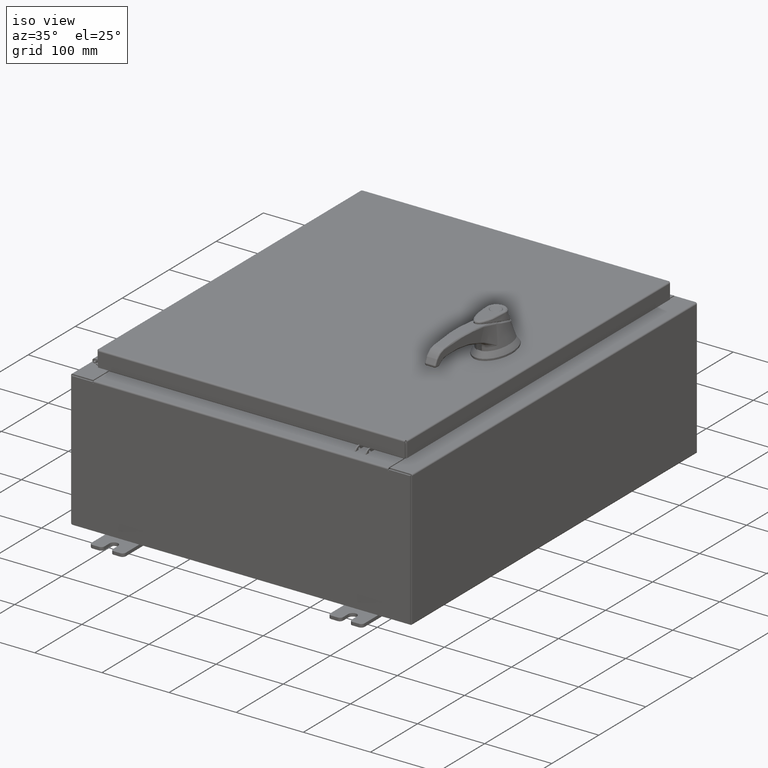
[diagram: clean part render]
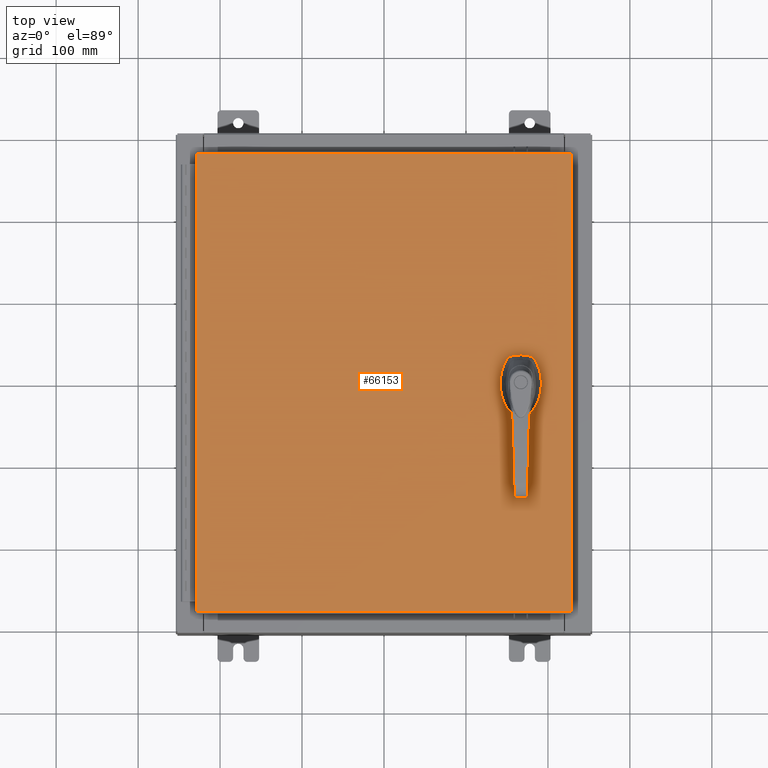
[diagram: tour spotlight — one face highlighted and labeled with its STEP entity id]
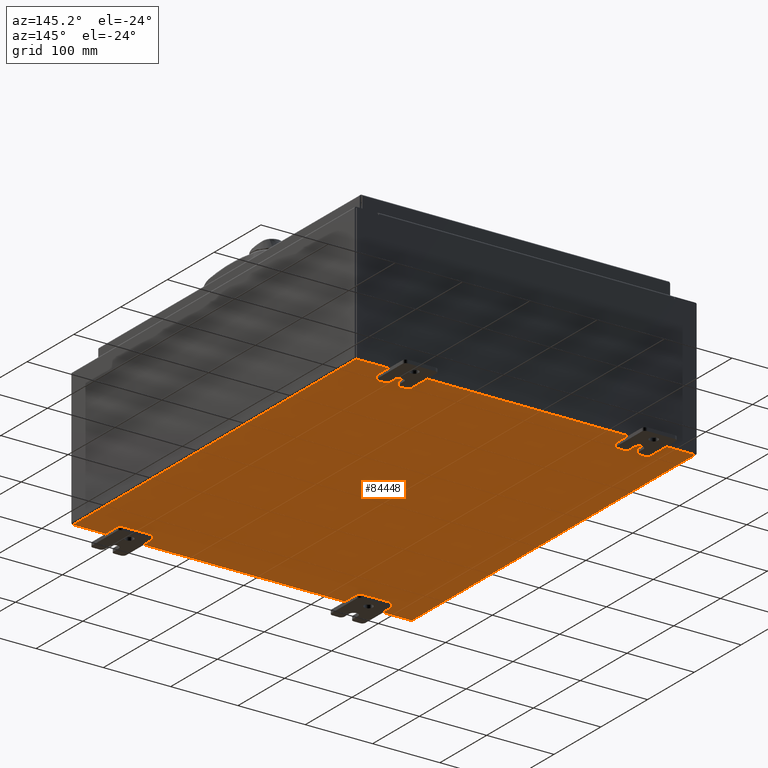
[diagram: tour spotlight — one face highlighted and labeled with its STEP entity id]
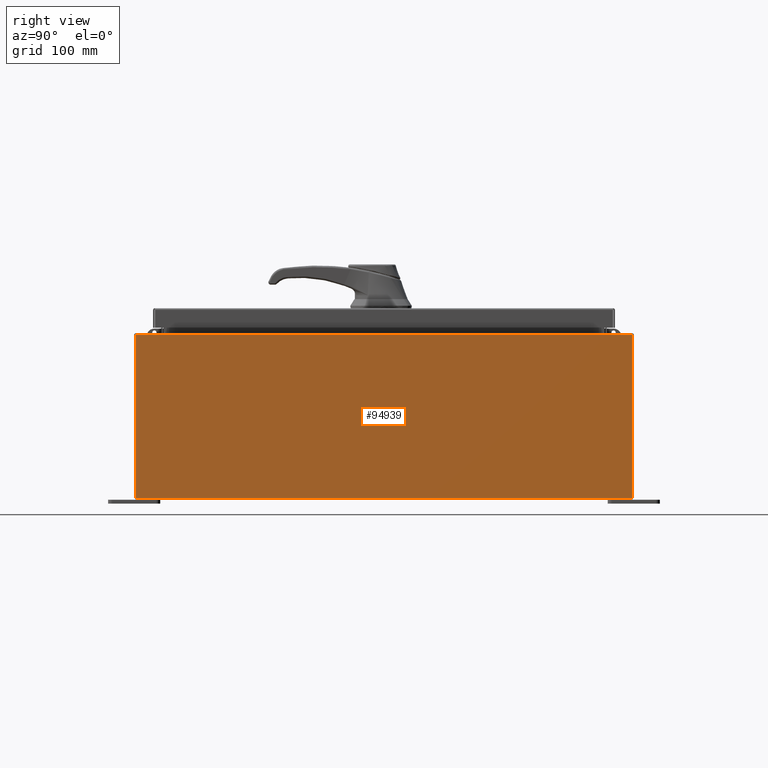
[diagram: tour spotlight — one face highlighted and labeled with its STEP entity id]
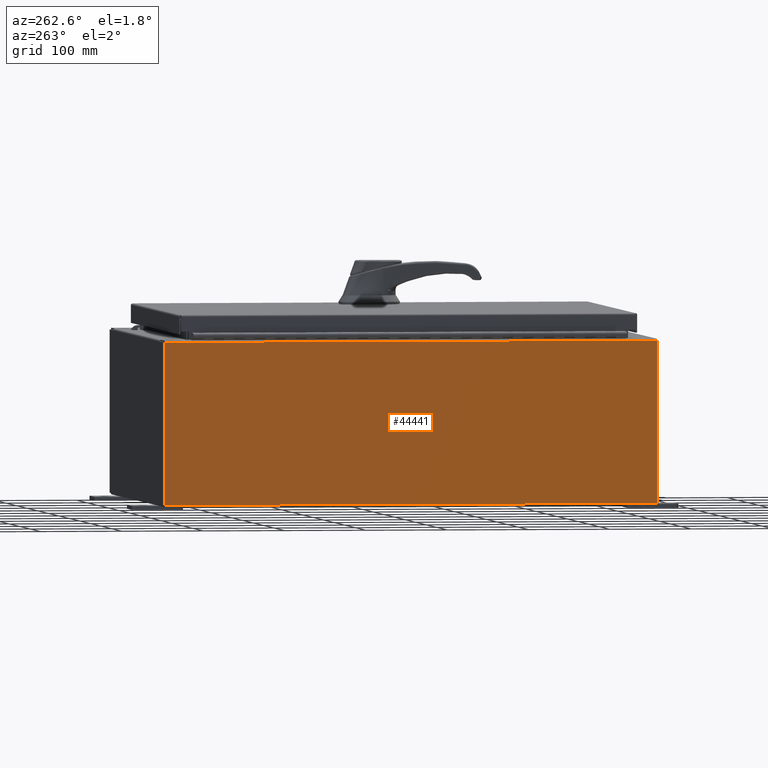
[diagram: tour spotlight — one face highlighted and labeled with its STEP entity id]
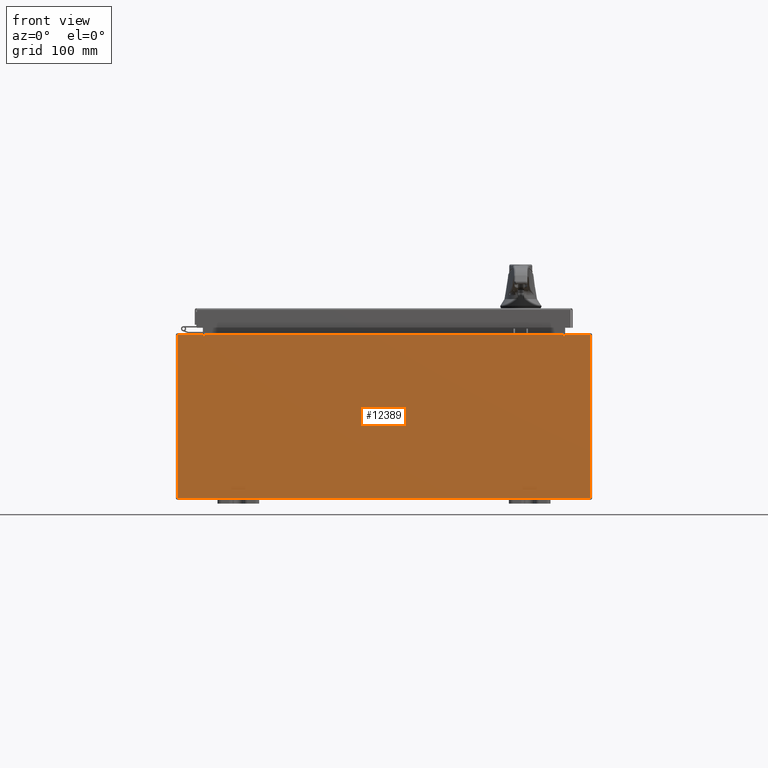
[diagram: tour spotlight — one face highlighted and labeled with its STEP entity id]
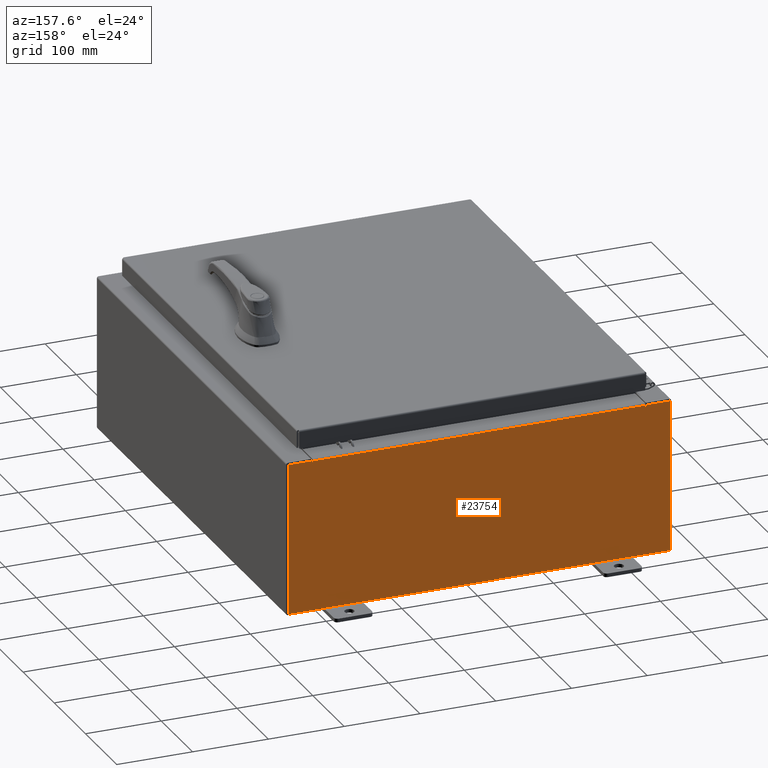
[diagram: tour spotlight — one face highlighted and labeled with its STEP entity id]
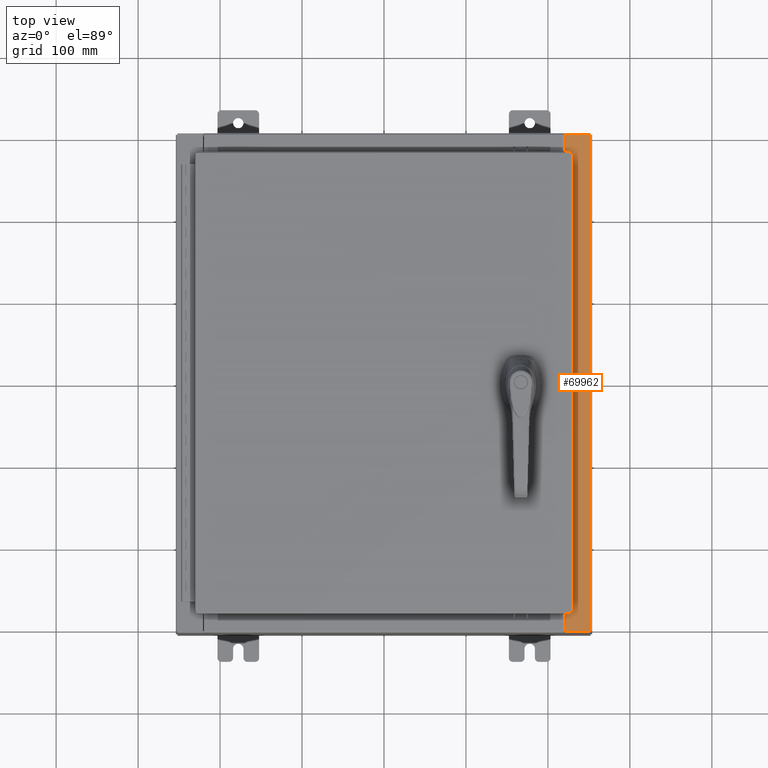
[diagram: tour spotlight — one face highlighted and labeled with its STEP entity id]
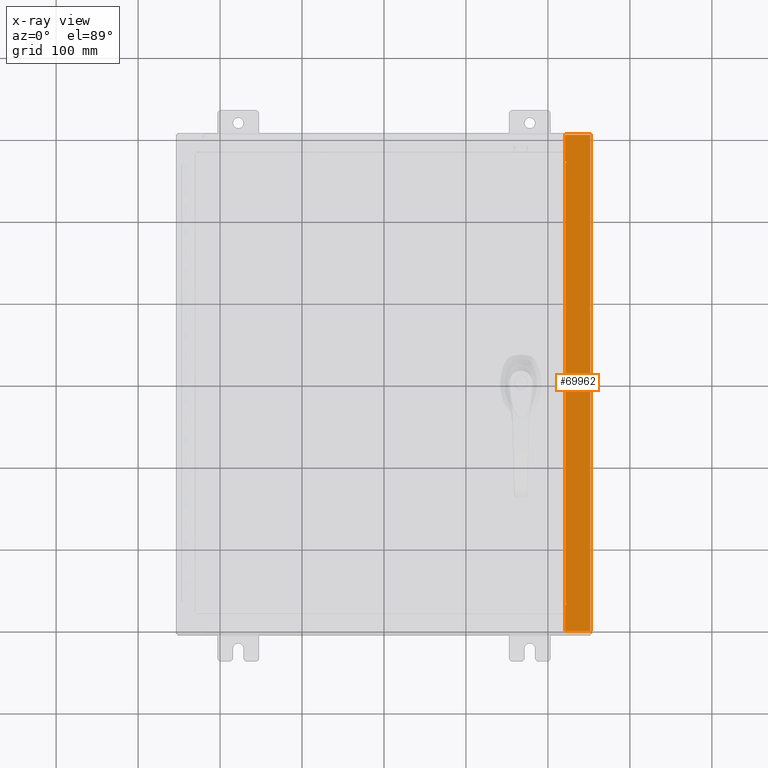
[diagram: x-ray of the same camera — body ghosted, this tour face saturated]
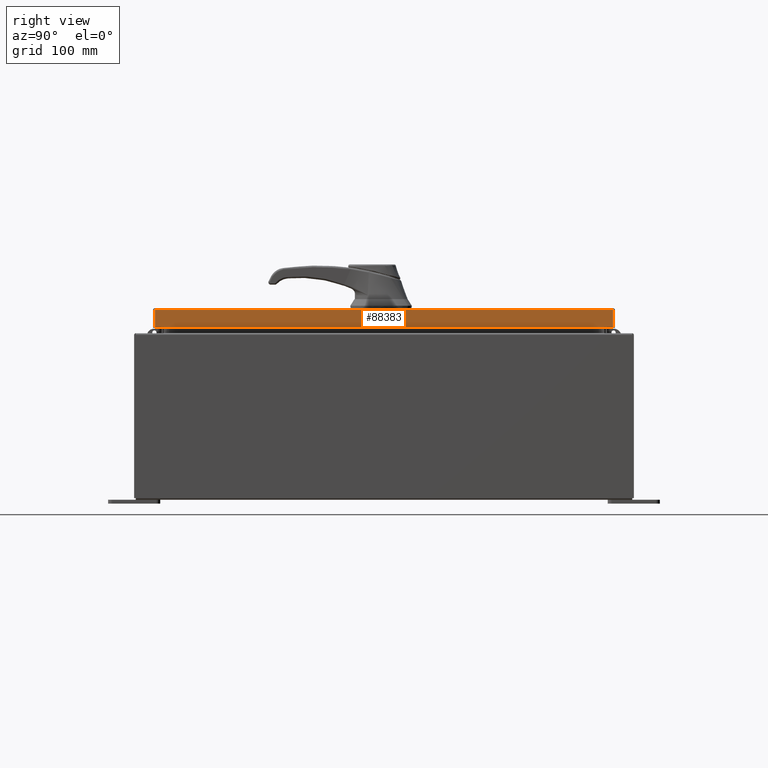
[diagram: tour spotlight — one face highlighted and labeled with its STEP entity id]
A machine part: a face-by-face anatomy tour. The part has 2498 B-rep faces; the first image is the clean iso view, then the 8 largest visible faces are spotlighted one at a time (largest first), each with its STEP entity span.

Face 1 — top view, entity #66153. In plain terms, the highlighted planar face has unit normal (0, 0, -1).
Definition (entity closure, byte-faithful):
#167 = DIRECTION ( 'NONE',  ( -1.000000000000000000, 0.0000000000000000000, -0.0000000000000000000 ) ) ;
#245 = DIRECTION ( 'NONE',  ( 0.0000000000000000000, -1.000000000000000000, 0.0000000000000000000 ) ) ;
#2099 = CARTESIAN_POINT ( 'NONE',  ( 8.990299999999997700, -11.00630000000000000, -2.219626494852214000E-016 ) ) ;
#2722 = DIRECTION ( 'NONE',  ( -0.0000000000000000000, 0.0000000000000000000, 1.000000000000000000 ) ) ;
#2962 = DIRECTION ( 'NONE',  ( 1.000000000000000000, 0.0000000000000000000, 0.0000000000000000000 ) ) ;
#5099 = EDGE_CURVE ( 'NONE', #64129, #7087, #112016, .T. ) ;
#5984 = LINE ( 'NONE', #52880, #96385 ) ;
#6948 = CARTESIAN_POINT ( 'NONE',  ( 6.778227370756308500, -0.4029999999999252000, 0.0000000000000000000 ) ) ;
#7087 = VERTEX_POINT ( 'NONE', #36078 ) ;
#7640 = DIRECTION ( 'NONE',  ( 1.000000000000000000, 0.0000000000000000000, 0.0000000000000000000 ) ) ;
#10518 = EDGE_CURVE ( 'NONE', #67933, #87426, #101704, .T. ) ;
#11762 = DIRECTION ( 'NONE',  ( -0.0000000000000000000, 0.0000000000000000000, 1.000000000000000000 ) ) ;
#12220 = ORIENTED_EDGE ( 'NONE', *, *, #45219, .T. ) ;
#12664 = EDGE_CURVE ( 'NONE', #7087, #64129, #49837, .T. ) ;
#12954 = CIRCLE ( 'NONE', #78759, 0.4499999999999156900 ) ;
#12976 = CARTESIAN_POINT ( 'NONE',  ( 6.577999999999998500, 0.0000000000000000000, 0.0000000000000000000 ) ) ;
#15866 = CIRCLE ( 'NONE', #38872, 0.4499999999999156900 ) ;
#16006 = AXIS2_PLACEMENT_3D ( 'NONE', #105162, #52801, #167 ) ;
#16655 = ORIENTED_EDGE ( 'NONE', *, *, #50394, .F. ) ;
#18141 = CARTESIAN_POINT ( 'NONE',  ( 8.990299999999999500, 11.00630000000000000, -2.048885995248197400E-016 ) ) ;
#19545 = CARTESIAN_POINT ( 'NONE',  ( -8.990299999999999500, 11.00630000000000100, -2.048885995248197400E-016 ) ) ;
#20146 = ORIENTED_EDGE ( 'NONE', *, *, #22339, .F. ) ;
#20782 = CARTESIAN_POINT ( 'NONE',  ( 6.175000000000072700, 0.0000000000000000000, 0.0000000000000000000 ) ) ;
#21818 = DIRECTION ( 'NONE',  ( 1.000000000000000000, 0.0000000000000000000, 0.0000000000000000000 ) ) ;
#22339 = EDGE_CURVE ( 'NONE', #87426, #75822, #102166, .T. ) ;
#22417 = FACE_BOUND ( 'NONE', #103806, .T. ) ;
#23910 = EDGE_LOOP ( 'NONE', ( #107874, #106300, #12220, #112803 ) ) ;
#24772 = DIRECTION ( 'NONE',  ( -1.000000000000000000, 0.0000000000000000000, 0.0000000000000000000 ) ) ;
#24813 = VECTOR ( 'NONE', #41017, 39.37007874015748100 ) ;
#24957 = CARTESIAN_POINT ( 'NONE',  ( -8.990300000000001300, -11.00630000000000100, 8.878505979408856000E-016 ) ) ;
#28572 = CARTESIAN_POINT ( 'NONE',  ( 6.577999999999998500, -1.338000000000000100, 0.0000000000000000000 ) ) ;
#29727 = CARTESIAN_POINT ( 'NONE',  ( 6.778227370756308500, 0.4029999999999252000, 0.0000000000000000000 ) ) ;
#30517 = VERTEX_POINT ( 'NONE', #34741 ) ;
#32212 = CARTESIAN_POINT ( 'NONE',  ( 6.980999999999924400, 0.0000000000000000000, 0.0000000000000000000 ) ) ;
#32299 = VERTEX_POINT ( 'NONE', #19545 ) ;
#34086 = ORIENTED_EDGE ( 'NONE', *, *, #69114, .T. ) ;
#34741 = CARTESIAN_POINT ( 'NONE',  ( 6.980999999999924400, 0.2002273707563080300, 0.0000000000000000000 ) ) ;
#34956 = CARTESIAN_POINT ( 'NONE',  ( 6.175000000000072700, -0.2002273707563079800, 0.0000000000000000000 ) ) ;
#35582 = CARTESIAN_POINT ( 'NONE',  ( -8.990300000000001300, -11.00630000000000100, 8.878505979408856000E-016 ) ) ;
#36078 = CARTESIAN_POINT ( 'NONE',  ( 6.406499999999998500, -1.338000000000000100, 0.0000000000000000000 ) ) ;
#36494 = VECTOR ( 'NONE', #2962, 39.37007874015748100 ) ;
#37043 = AXIS2_PLACEMENT_3D ( 'NONE', #28572, #110194, #42069 ) ;
#38065 = VECTOR ( 'NONE', #44650, 39.37007874015748100 ) ;
#38872 = AXIS2_PLACEMENT_3D ( 'NONE', #12976, #74064, #21818 ) ;
#40720 = CARTESIAN_POINT ( 'NONE',  ( 6.577999999999998500, -1.338000000000000100, 0.0000000000000000000 ) ) ;
#40811 = ORIENTED_EDGE ( 'NONE', *, *, #78337, .F. ) ;
#41017 = DIRECTION ( 'NONE',  ( 0.0000000000000000000, -1.000000000000000000, 0.0000000000000000000 ) ) ;
#41114 = CARTESIAN_POINT ( 'NONE',  ( 8.990299999999999500, 11.00630000000000000, -2.048885995248197400E-016 ) ) ;
#42069 = DIRECTION ( 'NONE',  ( 1.000000000000000000, 0.0000000000000000000, 0.0000000000000000000 ) ) ;
#44650 = DIRECTION ( 'NONE',  ( -1.000000000000000000, -0.0000000000000000000, -0.0000000000000000000 ) ) ;
#45009 = CARTESIAN_POINT ( 'NONE',  ( 6.377772629243688500, 0.4029999999999252000, 0.0000000000000000000 ) ) ;
#45219 = EDGE_CURVE ( 'NONE', #94349, #32299, #84336, .T. ) ;
#45730 = FACE_OUTER_BOUND ( 'NONE', #23910, .T. ) ;
#47497 = DIRECTION ( 'NONE',  ( 0.0000000000000000000, -1.000000000000000000, 0.0000000000000000000 ) ) ;
#48000 = LINE ( 'NONE', #24957, #68387 ) ;
#49402 = ORIENTED_EDGE ( 'NONE', *, *, #100456, .F. ) ;
#49837 = CIRCLE ( 'NONE', #105726, 0.1715000000000000700 ) ;
#50394 = EDGE_CURVE ( 'NONE', #70446, #67933, #64941, .T. ) ;
#52801 = DIRECTION ( 'NONE',  ( 0.0000000000000000000, 0.0000000000000000000, -1.000000000000000000 ) ) ;
#52880 = CARTESIAN_POINT ( 'NONE',  ( -8.990299999999999500, 11.00630000000000100, -2.048885995248197400E-016 ) ) ;
#54296 = LINE ( 'NONE', #77000, #95278 ) ;
#54432 = DIRECTION ( 'NONE',  ( 1.000000000000000000, 0.0000000000000000000, 0.0000000000000000000 ) ) ;
#55291 = CARTESIAN_POINT ( 'NONE',  ( 6.577999999999998500, 0.0000000000000000000, 0.0000000000000000000 ) ) ;
#55320 = EDGE_CURVE ( 'NONE', #90614, #106882, #48000, .T. ) ;
#57260 = VERTEX_POINT ( 'NONE', #6948 ) ;
#58314 = ORIENTED_EDGE ( 'NONE', *, *, #12664, .F. ) ;
#60134 = DIRECTION ( 'NONE',  ( -0.0000000000000000000, 0.0000000000000000000, 1.000000000000000000 ) ) ;
#63681 = AXIS2_PLACEMENT_3D ( 'NONE', #64195, #11762, #72876 ) ;
#64091 = DIRECTION ( 'NONE',  ( 1.000000000000000000, 0.0000000000000000000, 0.0000000000000000000 ) ) ;
#64129 = VERTEX_POINT ( 'NONE', #94769 ) ;
#64195 = CARTESIAN_POINT ( 'NONE',  ( 6.577999999999998500, 0.0000000000000000000, 0.0000000000000000000 ) ) ;
#64941 = CIRCLE ( 'NONE', #70792, 0.4499999999999156900 ) ;
#66153 = ADVANCED_FACE ( 'NONE', ( #89322, #45730, #22417 ), #69926, .F. ) ;
#66386 = EDGE_CURVE ( 'NONE', #106882, #94349, #104455, .T. ) ;
#67933 = VERTEX_POINT ( 'NONE', #99299 ) ;
#68387 = VECTOR ( 'NONE', #77187, 39.37007874015748100 ) ;
#69114 = EDGE_CURVE ( 'NONE', #30517, #73194, #71233, .T. ) ;
#69926 = PLANE ( 'NONE',  #16006 ) ;
#70446 = VERTEX_POINT ( 'NONE', #45009 ) ;
#70792 = AXIS2_PLACEMENT_3D ( 'NONE', #55291, #2722, #64091 ) ;
#71233 = LINE ( 'NONE', #32212, #24813 ) ;
#72876 = DIRECTION ( 'NONE',  ( 1.000000000000000000, 0.0000000000000000000, 0.0000000000000000000 ) ) ;
#73194 = VERTEX_POINT ( 'NONE', #80132 ) ;
#74064 = DIRECTION ( 'NONE',  ( -0.0000000000000000000, 0.0000000000000000000, 1.000000000000000000 ) ) ;
#75822 = VERTEX_POINT ( 'NONE', #89782 ) ;
#76763 = DIRECTION ( 'NONE',  ( 0.0000000000000000000, 1.000000000000000000, 0.0000000000000000000 ) ) ;
#77000 = CARTESIAN_POINT ( 'NONE',  ( 0.0000000000000000000, 0.4029999999999252000, 0.0000000000000000000 ) ) ;
#77143 = EDGE_CURVE ( 'NONE', #75822, #57260, #108915, .T. ) ;
#77187 = DIRECTION ( 'NONE',  ( 1.000000000000000000, -0.0000000000000000000, -0.0000000000000000000 ) ) ;
#78293 = VECTOR ( 'NONE', #47497, 39.37007874015748100 ) ;
#78337 = EDGE_CURVE ( 'NONE', #57260, #73194, #12954, .T. ) ;
#78759 = AXIS2_PLACEMENT_3D ( 'NONE', #112535, #60134, #7640 ) ;
#80132 = CARTESIAN_POINT ( 'NONE',  ( 6.980999999999924400, -0.2002273707563079800, 0.0000000000000000000 ) ) ;
#84336 = LINE ( 'NONE', #18141, #38065 ) ;
#86268 = ORIENTED_EDGE ( 'NONE', *, *, #5099, .F. ) ;
#87426 = VERTEX_POINT ( 'NONE', #34956 ) ;
#89237 = ORIENTED_EDGE ( 'NONE', *, *, #104842, .F. ) ;
#89322 = FACE_BOUND ( 'NONE', #102904, .T. ) ;
#89782 = CARTESIAN_POINT ( 'NONE',  ( 6.377772629243688500, -0.4029999999999252000, 0.0000000000000000000 ) ) ;
#90245 = CARTESIAN_POINT ( 'NONE',  ( 0.0000000000000000000, -0.4029999999999252000, 0.0000000000000000000 ) ) ;
#90614 = VERTEX_POINT ( 'NONE', #35582 ) ;
#90926 = CARTESIAN_POINT ( 'NONE',  ( 8.990299999999997700, -11.00630000000000000, -2.219626494852214000E-016 ) ) ;
#92873 = VERTEX_POINT ( 'NONE', #29727 ) ;
#94349 = VERTEX_POINT ( 'NONE', #41114 ) ;
#94769 = CARTESIAN_POINT ( 'NONE',  ( 6.749499999999998500, -1.338000000000000100, 0.0000000000000000000 ) ) ;
#95278 = VECTOR ( 'NONE', #24772, 39.37007874015748100 ) ;
#96385 = VECTOR ( 'NONE', #245, 39.37007874015748100 ) ;
#98942 = VECTOR ( 'NONE', #76763, 39.37007874015748100 ) ;
#99299 = CARTESIAN_POINT ( 'NONE',  ( 6.175000000000072700, 0.2002273707563079800, 0.0000000000000000000 ) ) ;
#100456 = EDGE_CURVE ( 'NONE', #92873, #70446, #54296, .T. ) ;
#100682 = ORIENTED_EDGE ( 'NONE', *, *, #10518, .F. ) ;
#101704 = LINE ( 'NONE', #20782, #78293 ) ;
#102166 = CIRCLE ( 'NONE', #63681, 0.4499999999999156900 ) ;
#102168 = EDGE_CURVE ( 'NONE', #32299, #90614, #5984, .T. ) ;
#102904 = EDGE_LOOP ( 'NONE', ( #86268, #58314 ) ) ;
#103806 = EDGE_LOOP ( 'NONE', ( #34086, #40811, #105640, #20146, #100682, #16655, #49402, #89237 ) ) ;
#104455 = LINE ( 'NONE', #2099, #98942 ) ;
#104698 = DIRECTION ( 'NONE',  ( -0.0000000000000000000, 0.0000000000000000000, 1.000000000000000000 ) ) ;
#104842 = EDGE_CURVE ( 'NONE', #30517, #92873, #15866, .T. ) ;
#105162 = CARTESIAN_POINT ( 'NONE',  ( 0.0000000000000000000, 0.0000000000000000000, 0.0000000000000000000 ) ) ;
#105640 = ORIENTED_EDGE ( 'NONE', *, *, #77143, .F. ) ;
#105726 = AXIS2_PLACEMENT_3D ( 'NONE', #40720, #104698, #54432 ) ;
#106300 = ORIENTED_EDGE ( 'NONE', *, *, #66386, .T. ) ;
#106882 = VERTEX_POINT ( 'NONE', #90926 ) ;
#107874 = ORIENTED_EDGE ( 'NONE', *, *, #55320, .T. ) ;
#108915 = LINE ( 'NONE', #90245, #36494 ) ;
#110194 = DIRECTION ( 'NONE',  ( -0.0000000000000000000, 0.0000000000000000000, 1.000000000000000000 ) ) ;
#112016 = CIRCLE ( 'NONE', #37043, 0.1715000000000000700 ) ;
#112535 = CARTESIAN_POINT ( 'NONE',  ( 6.577999999999998500, 0.0000000000000000000, 0.0000000000000000000 ) ) ;
#112803 = ORIENTED_EDGE ( 'NONE', *, *, #102168, .T. ) ;

Face 2 — auxiliary view, entity #84448. In plain terms, the highlighted planar face has unit normal (0, 0, -1).
Definition (entity closure, byte-faithful):
#2347 = CARTESIAN_POINT ( 'NONE',  ( 9.912300000000000100, -11.92530000000000000, -0.07470000000000000300 ) ) ;
#2966 = DIRECTION ( 'NONE',  ( -0.0000000000000000000, -1.000000000000000000, -0.0000000000000000000 ) ) ;
#2972 = CARTESIAN_POINT ( 'NONE',  ( -9.912300000000000100, -11.92529999999999800, -0.07469999999999994700 ) ) ;
#2977 = PLANE ( 'NONE',  #3505 ) ;
#3505 = AXIS2_PLACEMENT_3D ( 'NONE', #73014, #99485, #47216 ) ;
#7753 = VECTOR ( 'NONE', #10427, 39.37007874015748100 ) ;
#7900 = VERTEX_POINT ( 'NONE', #2972 ) ;
#8205 = VECTOR ( 'NONE', #2966, 39.37007874015748100 ) ;
#10427 = DIRECTION ( 'NONE',  ( -1.000000000000000000, -0.0000000000000000000, -0.0000000000000000000 ) ) ;
#10758 = LINE ( 'NONE', #51371, #92835 ) ;
#11887 = CARTESIAN_POINT ( 'NONE',  ( 9.912300000000000100, 11.92530000000000000, -0.07469999999999994700 ) ) ;
#12574 = FACE_OUTER_BOUND ( 'NONE', #98703, .T. ) ;
#18458 = EDGE_CURVE ( 'NONE', #7900, #48151, #10758, .T. ) ;
#22569 = ORIENTED_EDGE ( 'NONE', *, *, #18458, .T. ) ;
#22596 = CARTESIAN_POINT ( 'NONE',  ( -10.00000000000000000, -11.92530000000000000, -0.07470000000000000300 ) ) ;
#32657 = EDGE_CURVE ( 'NONE', #7900, #113695, #101001, .T. ) ;
#33500 = EDGE_CURVE ( 'NONE', #77756, #48151, #100896, .T. ) ;
#40882 = ORIENTED_EDGE ( 'NONE', *, *, #87044, .T. ) ;
#47216 = DIRECTION ( 'NONE',  ( -1.000000000000000000, 0.0000000000000000000, -0.0000000000000000000 ) ) ;
#48151 = VERTEX_POINT ( 'NONE', #112745 ) ;
#51371 = CARTESIAN_POINT ( 'NONE',  ( -9.912300000000000100, -11.92530000000000000, -0.07469999999999994700 ) ) ;
#60119 = DIRECTION ( 'NONE',  ( -0.0000000000000000000, 1.000000000000000000, -0.0000000000000000000 ) ) ;
#62885 = CARTESIAN_POINT ( 'NONE',  ( -10.00000000000000000, 11.92530000000000000, -0.07470000000000000300 ) ) ;
#64635 = ORIENTED_EDGE ( 'NONE', *, *, #32657, .F. ) ;
#73014 = CARTESIAN_POINT ( 'NONE',  ( 0.0000000000000000000, 0.0000000000000000000, -0.07470000000000000300 ) ) ;
#75208 = LINE ( 'NONE', #11887, #8205 ) ;
#77756 = VERTEX_POINT ( 'NONE', #80140 ) ;
#80140 = CARTESIAN_POINT ( 'NONE',  ( 9.912300000000000100, 11.92529999999999800, -0.07469999999999994700 ) ) ;
#84448 = ADVANCED_FACE ( 'NONE', ( #12574 ), #2977, .T. ) ;
#87044 = EDGE_CURVE ( 'NONE', #77756, #113695, #75208, .T. ) ;
#92835 = VECTOR ( 'NONE', #60119, 39.37007874015748100 ) ;
#98237 = VECTOR ( 'NONE', #101317, 39.37007874015748100 ) ;
#98703 = EDGE_LOOP ( 'NONE', ( #64635, #22569, #111156, #40882 ) ) ;
#99485 = DIRECTION ( 'NONE',  ( 0.0000000000000000000, 0.0000000000000000000, -1.000000000000000000 ) ) ;
#100896 = LINE ( 'NONE', #62885, #7753 ) ;
#101001 = LINE ( 'NONE', #22596, #98237 ) ;
#101317 = DIRECTION ( 'NONE',  ( 1.000000000000000000, 0.0000000000000000000, 0.0000000000000000000 ) ) ;
#111156 = ORIENTED_EDGE ( 'NONE', *, *, #33500, .F. ) ;
#112745 = CARTESIAN_POINT ( 'NONE',  ( -9.912300000000000100, 11.92530000000000000, -0.07470000000000000300 ) ) ;
#113695 = VERTEX_POINT ( 'NONE', #2347 ) ;

Face 3 — right view, entity #94939. In plain terms, the highlighted planar face has unit normal (-1, 0, 0).
Definition (entity closure, byte-faithful):
#212 = LINE ( 'NONE', #54606, #20976 ) ;
#15077 = ORIENTED_EDGE ( 'NONE', *, *, #79212, .F. ) ;
#15963 = DIRECTION ( 'NONE',  ( -0.0000000000000000000, -1.000000000000000000, -0.0000000000000000000 ) ) ;
#20751 = VECTOR ( 'NONE', #53984, 39.37007874015748100 ) ;
#20976 = VECTOR ( 'NONE', #63428, 39.37007874015748100 ) ;
#31389 = VERTEX_POINT ( 'NONE', #32563 ) ;
#32563 = CARTESIAN_POINT ( 'NONE',  ( 10.00000000000000000, -11.92530000000000000, 0.01299999999999983600 ) ) ;
#35273 = DIRECTION ( 'NONE',  ( -0.0000000000000000000, -1.000000000000000000, -0.0000000000000000000 ) ) ;
#36161 = EDGE_LOOP ( 'NONE', ( #37733, #83761, #15077, #47136 ) ) ;
#37733 = ORIENTED_EDGE ( 'NONE', *, *, #65081, .T. ) ;
#38996 = PLANE ( 'NONE',  #78261 ) ;
#39890 = VERTEX_POINT ( 'NONE', #56008 ) ;
#42106 = CARTESIAN_POINT ( 'NONE',  ( 10.00000000000002800, 11.92530000000000000, 7.837599999999992100 ) ) ;
#42866 = VECTOR ( 'NONE', #15963, 39.37007874015748100 ) ;
#45023 = CARTESIAN_POINT ( 'NONE',  ( 10.00000000000002800, 11.92529999999999800, 7.837599999999992100 ) ) ;
#45279 = CARTESIAN_POINT ( 'NONE',  ( 10.00000000000000000, -11.92530000000000000, -3.610957538630361200E-014 ) ) ;
#47136 = ORIENTED_EDGE ( 'NONE', *, *, #107935, .T. ) ;
#47745 = DIRECTION ( 'NONE',  ( 3.584876173029202900E-015, 0.0000000000000000000, 1.000000000000000000 ) ) ;
#49500 = CARTESIAN_POINT ( 'NONE',  ( 10.00000000000000000, 11.92529999999999800, 0.01299999999999984700 ) ) ;
#53984 = DIRECTION ( 'NONE',  ( -3.584876173029202900E-015, 0.0000000000000000000, -1.000000000000000000 ) ) ;
#54606 = CARTESIAN_POINT ( 'NONE',  ( 10.00000000000000000, 11.92530000000000000, -3.610957538630361200E-014 ) ) ;
#55160 = VERTEX_POINT ( 'NONE', #49500 ) ;
#56008 = CARTESIAN_POINT ( 'NONE',  ( 10.00000000000002800, -11.92530000000000000, 7.837599999999998300 ) ) ;
#63428 = DIRECTION ( 'NONE',  ( 3.584876173029202900E-015, 0.0000000000000000000, 1.000000000000000000 ) ) ;
#65081 = EDGE_CURVE ( 'NONE', #77858, #39890, #112573, .T. ) ;
#67221 = LINE ( 'NONE', #45279, #20751 ) ;
#68863 = EDGE_CURVE ( 'NONE', #39890, #31389, #67221, .T. ) ;
#73270 = VECTOR ( 'NONE', #35273, 39.37007874015748100 ) ;
#77858 = VERTEX_POINT ( 'NONE', #45023 ) ;
#78261 = AXIS2_PLACEMENT_3D ( 'NONE', #82317, #100013, #47745 ) ;
#78603 = CARTESIAN_POINT ( 'NONE',  ( 10.00000000000000000, -11.92530000000000000, 0.01299999999999984700 ) ) ;
#79212 = EDGE_CURVE ( 'NONE', #55160, #31389, #88311, .T. ) ;
#82317 = CARTESIAN_POINT ( 'NONE',  ( 10.00000000000000000, 0.0000000000000000000, -3.610957538630361200E-014 ) ) ;
#83761 = ORIENTED_EDGE ( 'NONE', *, *, #68863, .T. ) ;
#88311 = LINE ( 'NONE', #78603, #73270 ) ;
#94939 = ADVANCED_FACE ( 'NONE', ( #101313 ), #38996, .F. ) ;
#100013 = DIRECTION ( 'NONE',  ( -1.000000000000000000, 0.0000000000000000000, 3.584876173029202900E-015 ) ) ;
#101313 = FACE_OUTER_BOUND ( 'NONE', #36161, .T. ) ;
#107935 = EDGE_CURVE ( 'NONE', #55160, #77858, #212, .T. ) ;
#112573 = LINE ( 'NONE', #42106, #42866 ) ;

Face 4 — auxiliary view, entity #44441. In plain terms, the highlighted planar face has unit normal (1, 0, 0).
Definition (entity closure, byte-faithful):
#2098 = VECTOR ( 'NONE', #33642, 39.37007874015748100 ) ;
#2635 = LINE ( 'NONE', #3729, #5421 ) ;
#3729 = CARTESIAN_POINT ( 'NONE',  ( -10.00000000000000000, 11.92530000000000000, 0.01299999999999984700 ) ) ;
#4688 = CARTESIAN_POINT ( 'NONE',  ( -10.00000000000002800, -11.92530000000000000, 7.837599999999999200 ) ) ;
#5421 = VECTOR ( 'NONE', #65061, 39.37007874015748100 ) ;
#6061 = EDGE_LOOP ( 'NONE', ( #42189, #88038, #44607, #79026 ) ) ;
#7809 = CARTESIAN_POINT ( 'NONE',  ( -10.00000000000000000, 11.92530000000000000, 0.01299999999999983600 ) ) ;
#12106 = CARTESIAN_POINT ( 'NONE',  ( -10.00000000000000000, 0.0000000000000000000, -3.610957538630361200E-014 ) ) ;
#12598 = CARTESIAN_POINT ( 'NONE',  ( -10.00000000000000000, 11.92530000000000000, -3.610957538630361200E-014 ) ) ;
#17584 = CARTESIAN_POINT ( 'NONE',  ( -10.00000000000002800, -11.92529999999999500, 7.837599999999999200 ) ) ;
#18385 = VECTOR ( 'NONE', #65994, 39.37007874015748100 ) ;
#20959 = DIRECTION ( 'NONE',  ( 3.584876173029202900E-015, 0.0000000000000000000, -1.000000000000000000 ) ) ;
#27587 = VERTEX_POINT ( 'NONE', #57620 ) ;
#33642 = DIRECTION ( 'NONE',  ( -3.584876173029202900E-015, 0.0000000000000000000, 1.000000000000000000 ) ) ;
#38272 = PLANE ( 'NONE',  #72781 ) ;
#39065 = LINE ( 'NONE', #4688, #18385 ) ;
#42189 = ORIENTED_EDGE ( 'NONE', *, *, #81316, .T. ) ;
#44441 = ADVANCED_FACE ( 'NONE', ( #109178 ), #38272, .F. ) ;
#44607 = ORIENTED_EDGE ( 'NONE', *, *, #87103, .F. ) ;
#57620 = CARTESIAN_POINT ( 'NONE',  ( -10.00000000000002800, 11.92530000000000000, 7.837599999999999200 ) ) ;
#59675 = LINE ( 'NONE', #12598, #103473 ) ;
#63265 = VERTEX_POINT ( 'NONE', #17584 ) ;
#64991 = DIRECTION ( 'NONE',  ( 3.584876173029202900E-015, 0.0000000000000000000, -1.000000000000000000 ) ) ;
#65061 = DIRECTION ( 'NONE',  ( -0.0000000000000000000, 1.000000000000000000, -0.0000000000000000000 ) ) ;
#65994 = DIRECTION ( 'NONE',  ( 0.0000000000000000000, 1.000000000000000000, 0.0000000000000000000 ) ) ;
#66968 = VERTEX_POINT ( 'NONE', #7809 ) ;
#67938 = CARTESIAN_POINT ( 'NONE',  ( -10.00000000000000000, -11.92530000000000000, -3.610957538630361200E-014 ) ) ;
#71963 = LINE ( 'NONE', #67938, #2098 ) ;
#72781 = AXIS2_PLACEMENT_3D ( 'NONE', #12106, #73213, #20959 ) ;
#73213 = DIRECTION ( 'NONE',  ( 1.000000000000000000, 0.0000000000000000000, 3.584876173029202900E-015 ) ) ;
#79026 = ORIENTED_EDGE ( 'NONE', *, *, #100469, .T. ) ;
#81316 = EDGE_CURVE ( 'NONE', #63265, #27587, #39065, .T. ) ;
#81362 = CARTESIAN_POINT ( 'NONE',  ( -10.00000000000000000, -11.92529999999999800, 0.01299999999999984700 ) ) ;
#87103 = EDGE_CURVE ( 'NONE', #102405, #66968, #2635, .T. ) ;
#88038 = ORIENTED_EDGE ( 'NONE', *, *, #104834, .T. ) ;
#100469 = EDGE_CURVE ( 'NONE', #102405, #63265, #71963, .T. ) ;
#102405 = VERTEX_POINT ( 'NONE', #81362 ) ;
#103473 = VECTOR ( 'NONE', #64991, 39.37007874015748100 ) ;
#104834 = EDGE_CURVE ( 'NONE', #27587, #66968, #59675, .T. ) ;
#109178 = FACE_OUTER_BOUND ( 'NONE', #6061, .T. ) ;

Face 5 — front view, entity #12389. In plain terms, the highlighted planar face has unit normal (-0, 1, -0).
Definition (entity closure, byte-faithful):
#923 = CARTESIAN_POINT ( 'NONE',  ( 8.637200000000000000, 0.0000000000000000000, 3.912299999999999700 ) ) ;
#2592 = DIRECTION ( 'NONE',  ( 0.0000000000000000000, 0.0000000000000000000, -1.000000000000000000 ) ) ;
#2600 = DIRECTION ( 'NONE',  ( 0.0000000000000000000, -1.000000000000000000, 0.0000000000000000000 ) ) ;
#2696 = EDGE_CURVE ( 'NONE', #58393, #72719, #92907, .T. ) ;
#4144 = DIRECTION ( 'NONE',  ( 0.0000000000000000000, -0.0000000000000000000, -1.000000000000000000 ) ) ;
#6775 = ORIENTED_EDGE ( 'NONE', *, *, #76236, .T. ) ;
#8303 = CARTESIAN_POINT ( 'NONE',  ( -9.925300000000000000, 0.0000000000000000000, -3.925299999999999600 ) ) ;
#9616 = PLANE ( 'NONE',  #47200 ) ;
#9933 = EDGE_CURVE ( 'NONE', #104246, #77373, #90769, .T. ) ;
#10400 = VECTOR ( 'NONE', #50439, 39.37007874015748100 ) ;
#11734 = DIRECTION ( 'NONE',  ( 1.000000000000000000, 0.0000000000000000000, 0.0000000000000000000 ) ) ;
#12074 = EDGE_CURVE ( 'NONE', #22271, #12623, #16615, .T. ) ;
#12389 = ADVANCED_FACE ( 'NONE', ( #83884 ), #9616, .F. ) ;
#12623 = VERTEX_POINT ( 'NONE', #72652 ) ;
#12974 = LINE ( 'NONE', #15622, #15712 ) ;
#13498 = EDGE_CURVE ( 'NONE', #63245, #58393, #20937, .T. ) ;
#15622 = CARTESIAN_POINT ( 'NONE',  ( -8.674549999999996400, -0.0000000000000000000, 0.0000000000000000000 ) ) ;
#15712 = VECTOR ( 'NONE', #24462, 39.37007874015748100 ) ;
#16615 = LINE ( 'NONE', #64478, #60443 ) ;
#18667 = EDGE_CURVE ( 'NONE', #90957, #76237, #81793, .T. ) ;
#18866 = ORIENTED_EDGE ( 'NONE', *, *, #12074, .T. ) ;
#19426 = DIRECTION ( 'NONE',  ( 0.0000000000000000000, 0.0000000000000000000, -1.000000000000000000 ) ) ;
#20937 = LINE ( 'NONE', #37159, #90639 ) ;
#21865 = ORIENTED_EDGE ( 'NONE', *, *, #22185, .T. ) ;
#22185 = EDGE_CURVE ( 'NONE', #77373, #47686, #89787, .T. ) ;
#22271 = VERTEX_POINT ( 'NONE', #46312 ) ;
#22911 = EDGE_LOOP ( 'NONE', ( #45592, #82965, #64376, #56728, #62727, #51468, #24473, #35971, #21865, #6775, #55161, #18866 ) ) ;
#23571 = VERTEX_POINT ( 'NONE', #923 ) ;
#23618 = LINE ( 'NONE', #34280, #44189 ) ;
#24462 = DIRECTION ( 'NONE',  ( 0.0000000000000000000, 0.0000000000000000000, 1.000000000000000000 ) ) ;
#24473 = ORIENTED_EDGE ( 'NONE', *, *, #49419, .F. ) ;
#25971 = EDGE_CURVE ( 'NONE', #72719, #12623, #12974, .T. ) ;
#27574 = DIRECTION ( 'NONE',  ( 0.0000000000000000000, 0.0000000000000000000, -1.000000000000000000 ) ) ;
#29878 = DIRECTION ( 'NONE',  ( -0.0000000000000000000, 1.000000000000000000, -0.0000000000000000000 ) ) ;
#30456 = VERTEX_POINT ( 'NONE', #8303 ) ;
#32131 = CARTESIAN_POINT ( 'NONE',  ( -9.925300000000000000, 0.0000000000000000000, 3.925299999999999600 ) ) ;
#34280 = CARTESIAN_POINT ( 'NONE',  ( -9.925300000000000000, 0.0000000000000000000, 3.925299999999999600 ) ) ;
#34939 = CARTESIAN_POINT ( 'NONE',  ( -8.655874999999996400, 0.0000000000000000000, 3.874949999999999700 ) ) ;
#35971 = ORIENTED_EDGE ( 'NONE', *, *, #9933, .T. ) ;
#37159 = CARTESIAN_POINT ( 'NONE',  ( -8.637199999999996400, -0.0000000000000000000, 0.0000000000000000000 ) ) ;
#38079 = CARTESIAN_POINT ( 'NONE',  ( 0.0000000000000000000, 0.0000000000000000000, 0.0000000000000000000 ) ) ;
#38175 = VECTOR ( 'NONE', #80002, 39.37007874015748100 ) ;
#43874 = EDGE_CURVE ( 'NONE', #76237, #23571, #81687, .T. ) ;
#44189 = VECTOR ( 'NONE', #68928, 39.37007874015748100 ) ;
#45592 = ORIENTED_EDGE ( 'NONE', *, *, #25971, .F. ) ;
#45795 = CARTESIAN_POINT ( 'NONE',  ( 8.637200000000000000, 0.0000000000000000000, 0.0000000000000000000 ) ) ;
#46287 = CARTESIAN_POINT ( 'NONE',  ( -8.637200000000000000, 1.024442997624098700E-016, 3.912299999999999700 ) ) ;
#46312 = CARTESIAN_POINT ( 'NONE',  ( -9.925300000000000000, 0.0000000000000000000, 3.925299999999999600 ) ) ;
#47200 = AXIS2_PLACEMENT_3D ( 'NONE', #38079, #2600, #4144 ) ;
#47649 = CARTESIAN_POINT ( 'NONE',  ( 8.674550000000001800, 0.0000000000000000000, 3.925299999999999600 ) ) ;
#47686 = VERTEX_POINT ( 'NONE', #60138 ) ;
#49419 = EDGE_CURVE ( 'NONE', #104246, #90957, #75672, .T. ) ;
#50439 = DIRECTION ( 'NONE',  ( -1.000000000000000000, -0.0000000000000000000, -0.0000000000000000000 ) ) ;
#51468 = ORIENTED_EDGE ( 'NONE', *, *, #18667, .F. ) ;
#52782 = DIRECTION ( 'NONE',  ( 1.000000000000000000, 0.0000000000000000000, 0.0000000000000000000 ) ) ;
#55161 = ORIENTED_EDGE ( 'NONE', *, *, #84213, .T. ) ;
#56728 = ORIENTED_EDGE ( 'NONE', *, *, #108002, .T. ) ;
#58393 = VERTEX_POINT ( 'NONE', #102949 ) ;
#60138 = CARTESIAN_POINT ( 'NONE',  ( 9.925300000000000000, 0.0000000000000000000, -3.925299999999999600 ) ) ;
#60443 = VECTOR ( 'NONE', #80666, 39.37007874015748100 ) ;
#61711 = AXIS2_PLACEMENT_3D ( 'NONE', #34939, #108717, #2592 ) ;
#62727 = ORIENTED_EDGE ( 'NONE', *, *, #43874, .F. ) ;
#63245 = VERTEX_POINT ( 'NONE', #87127 ) ;
#63482 = CARTESIAN_POINT ( 'NONE',  ( 8.674549999999747700, -0.0000000000000000000, -5.647877341832665300E-013 ) ) ;
#64376 = ORIENTED_EDGE ( 'NONE', *, *, #13498, .F. ) ;
#64478 = CARTESIAN_POINT ( 'NONE',  ( -9.925300000000000000, 0.0000000000000000000, 3.925299999999999600 ) ) ;
#64721 = VECTOR ( 'NONE', #11734, 39.37007874015748100 ) ;
#67547 = VECTOR ( 'NONE', #52782, 39.37007874015748100 ) ;
#67830 = AXIS2_PLACEMENT_3D ( 'NONE', #82076, #29878, #90973 ) ;
#68928 = DIRECTION ( 'NONE',  ( -0.0000000000000000000, -0.0000000000000000000, 1.000000000000000000 ) ) ;
#72652 = CARTESIAN_POINT ( 'NONE',  ( -8.674549999999996400, 0.0000000000000000000, 3.925299999999999600 ) ) ;
#72719 = VERTEX_POINT ( 'NONE', #72979 ) ;
#72955 = VECTOR ( 'NONE', #89777, 39.37007874015748100 ) ;
#72979 = CARTESIAN_POINT ( 'NONE',  ( -8.674549999999996400, 0.0000000000000000000, 3.874949999999999700 ) ) ;
#75606 = CARTESIAN_POINT ( 'NONE',  ( 9.925300000000000000, 0.0000000000000000000, 3.925299999999999600 ) ) ;
#75672 = LINE ( 'NONE', #63482, #72955 ) ;
#76236 = EDGE_CURVE ( 'NONE', #47686, #30456, #80118, .T. ) ;
#76237 = VERTEX_POINT ( 'NONE', #85094 ) ;
#77373 = VERTEX_POINT ( 'NONE', #75606 ) ;
#80002 = DIRECTION ( 'NONE',  ( 0.0000000000000000000, 0.0000000000000000000, 1.000000000000000000 ) ) ;
#80118 = LINE ( 'NONE', #110871, #10400 ) ;
#80666 = DIRECTION ( 'NONE',  ( 1.000000000000000000, 0.0000000000000000000, 0.0000000000000000000 ) ) ;
#81687 = LINE ( 'NONE', #45795, #38175 ) ;
#81793 = CIRCLE ( 'NONE', #67830, 0.01867500000000003900 ) ;
#82076 = CARTESIAN_POINT ( 'NONE',  ( 8.655875000000000000, 0.0000000000000000000, 3.874949999999999700 ) ) ;
#82965 = ORIENTED_EDGE ( 'NONE', *, *, #2696, .F. ) ;
#83884 = FACE_OUTER_BOUND ( 'NONE', #22911, .T. ) ;
#84213 = EDGE_CURVE ( 'NONE', #30456, #22271, #23618, .T. ) ;
#85094 = CARTESIAN_POINT ( 'NONE',  ( 8.637200000000000000, 0.0000000000000000000, 3.874949999999999700 ) ) ;
#87127 = CARTESIAN_POINT ( 'NONE',  ( -8.637199999999996400, 1.024442997624098700E-016, 3.912299999999999700 ) ) ;
#87894 = LINE ( 'NONE', #46287, #64721 ) ;
#88583 = CARTESIAN_POINT ( 'NONE',  ( 9.925300000000000000, 0.0000000000000000000, 3.925299999999999600 ) ) ;
#89777 = DIRECTION ( 'NONE',  ( -6.510859170600007400E-014, 0.0000000000000000000, -1.000000000000000000 ) ) ;
#89787 = LINE ( 'NONE', #88583, #110425 ) ;
#90639 = VECTOR ( 'NONE', #19426, 39.37007874015748100 ) ;
#90769 = LINE ( 'NONE', #32131, #67547 ) ;
#90957 = VERTEX_POINT ( 'NONE', #93436 ) ;
#90973 = DIRECTION ( 'NONE',  ( 0.0000000000000000000, 0.0000000000000000000, -1.000000000000000000 ) ) ;
#92907 = CIRCLE ( 'NONE', #61711, 0.01867500000000003900 ) ;
#93436 = CARTESIAN_POINT ( 'NONE',  ( 8.674550000000000000, 0.0000000000000000000, 3.874949999999999700 ) ) ;
#102949 = CARTESIAN_POINT ( 'NONE',  ( -8.637199999999996400, -0.0000000000000000000, 3.874949999999999700 ) ) ;
#104246 = VERTEX_POINT ( 'NONE', #47649 ) ;
#108002 = EDGE_CURVE ( 'NONE', #63245, #23571, #87894, .T. ) ;
#108717 = DIRECTION ( 'NONE',  ( -0.0000000000000000000, 1.000000000000000000, -0.0000000000000000000 ) ) ;
#110425 = VECTOR ( 'NONE', #27574, 39.37007874015748100 ) ;
#110871 = CARTESIAN_POINT ( 'NONE',  ( -9.925300000000000000, 0.0000000000000000000, -3.925299999999999600 ) ) ;

Face 6 — auxiliary view, entity #23754. In plain terms, the highlighted planar face has unit normal (0, -1, 0).
Definition (entity closure, byte-faithful):
#199 = VECTOR ( 'NONE', #108418, 39.37007874015748100 ) ;
#558 = DIRECTION ( 'NONE',  ( 0.0000000000000000000, 0.0000000000000000000, -1.000000000000000000 ) ) ;
#747 = VECTOR ( 'NONE', #21013, 39.37007874015748100 ) ;
#1628 = LINE ( 'NONE', #112789, #92063 ) ;
#1790 = AXIS2_PLACEMENT_3D ( 'NONE', #6546, #102196, #49862 ) ;
#2094 = CARTESIAN_POINT ( 'NONE',  ( 0.0000000000000000000, 0.0000000000000000000, 0.0000000000000000000 ) ) ;
#4088 = VERTEX_POINT ( 'NONE', #50608 ) ;
#6546 = CARTESIAN_POINT ( 'NONE',  ( 8.655875000000000000, 0.0000000000000000000, 3.874949999999999700 ) ) ;
#8011 = EDGE_LOOP ( 'NONE', ( #48378, #82556, #24934, #47317, #111897, #51788, #35387, #43192, #39914, #35764, #96014, #59396 ) ) ;
#11164 = CARTESIAN_POINT ( 'NONE',  ( -8.674549999999996400, -0.0000000000000000000, 0.0000000000000000000 ) ) ;
#14087 = CARTESIAN_POINT ( 'NONE',  ( 8.674550000000001800, 0.0000000000000000000, 3.925299999999999600 ) ) ;
#14498 = DIRECTION ( 'NONE',  ( 1.000000000000000000, 0.0000000000000000000, 0.0000000000000000000 ) ) ;
#15265 = CARTESIAN_POINT ( 'NONE',  ( 9.925300000000000000, 0.0000000000000000000, 3.925299999999999600 ) ) ;
#15856 = DIRECTION ( 'NONE',  ( 1.000000000000000000, 0.0000000000000000000, 0.0000000000000000000 ) ) ;
#16743 = DIRECTION ( 'NONE',  ( -0.0000000000000000000, -0.0000000000000000000, 1.000000000000000000 ) ) ;
#17316 = VERTEX_POINT ( 'NONE', #82648 ) ;
#18134 = CARTESIAN_POINT ( 'NONE',  ( 9.925300000000000000, 0.0000000000000000000, 3.925299999999999600 ) ) ;
#19136 = VECTOR ( 'NONE', #37371, 39.37007874015748100 ) ;
#21013 = DIRECTION ( 'NONE',  ( 1.000000000000000000, 0.0000000000000000000, 0.0000000000000000000 ) ) ;
#22038 = VERTEX_POINT ( 'NONE', #78240 ) ;
#23754 = ADVANCED_FACE ( 'NONE', ( #81277 ), #28718, .F. ) ;
#24934 = ORIENTED_EDGE ( 'NONE', *, *, #41213, .F. ) ;
#28718 = PLANE ( 'NONE',  #98131 ) ;
#28781 = VECTOR ( 'NONE', #90477, 39.37007874015748100 ) ;
#30372 = VECTOR ( 'NONE', #41182, 39.37007874015748100 ) ;
#35387 = ORIENTED_EDGE ( 'NONE', *, *, #97731, .F. ) ;
#35461 = VECTOR ( 'NONE', #15856, 39.37007874015748100 ) ;
#35764 = ORIENTED_EDGE ( 'NONE', *, *, #51113, .T. ) ;
#36509 = CARTESIAN_POINT ( 'NONE',  ( 9.925300000000000000, 0.0000000000000000000, -3.925299999999999600 ) ) ;
#36655 = EDGE_CURVE ( 'NONE', #22038, #4088, #1628, .T. ) ;
#36693 = VERTEX_POINT ( 'NONE', #104360 ) ;
#37093 = DIRECTION ( 'NONE',  ( -6.510859170600007400E-014, 0.0000000000000000000, -1.000000000000000000 ) ) ;
#37371 = DIRECTION ( 'NONE',  ( 0.0000000000000000000, 0.0000000000000000000, 1.000000000000000000 ) ) ;
#37581 = DIRECTION ( 'NONE',  ( 0.0000000000000000000, -0.0000000000000000000, -1.000000000000000000 ) ) ;
#39914 = ORIENTED_EDGE ( 'NONE', *, *, #74856, .T. ) ;
#40799 = CARTESIAN_POINT ( 'NONE',  ( -9.925300000000000000, 0.0000000000000000000, -3.925299999999999600 ) ) ;
#41182 = DIRECTION ( 'NONE',  ( -1.000000000000000000, -0.0000000000000000000, -0.0000000000000000000 ) ) ;
#41213 = EDGE_CURVE ( 'NONE', #109225, #59410, #57421, .T. ) ;
#41306 = VERTEX_POINT ( 'NONE', #56096 ) ;
#43192 = ORIENTED_EDGE ( 'NONE', *, *, #100162, .T. ) ;
#45454 = CARTESIAN_POINT ( 'NONE',  ( -8.637199999999996400, 1.024442997624098700E-016, 3.912299999999999700 ) ) ;
#47317 = ORIENTED_EDGE ( 'NONE', *, *, #84750, .T. ) ;
#48263 = LINE ( 'NONE', #101707, #68632 ) ;
#48378 = ORIENTED_EDGE ( 'NONE', *, *, #96807, .F. ) ;
#49862 = DIRECTION ( 'NONE',  ( 0.0000000000000000000, 0.0000000000000000000, -1.000000000000000000 ) ) ;
#50608 = CARTESIAN_POINT ( 'NONE',  ( -9.925300000000000000, 0.0000000000000000000, 3.925299999999999600 ) ) ;
#50870 = DIRECTION ( 'NONE',  ( 0.0000000000000000000, 0.0000000000000000000, -1.000000000000000000 ) ) ;
#51113 = EDGE_CURVE ( 'NONE', #64507, #22038, #76711, .T. ) ;
#51788 = ORIENTED_EDGE ( 'NONE', *, *, #62971, .F. ) ;
#53179 = DIRECTION ( 'NONE',  ( -0.0000000000000000000, 1.000000000000000000, -0.0000000000000000000 ) ) ;
#56096 = CARTESIAN_POINT ( 'NONE',  ( -8.674549999999996400, 0.0000000000000000000, 3.874949999999999700 ) ) ;
#57421 = LINE ( 'NONE', #62675, #28781 ) ;
#58616 = LINE ( 'NONE', #76924, #35461 ) ;
#59129 = VERTEX_POINT ( 'NONE', #14087 ) ;
#59396 = ORIENTED_EDGE ( 'NONE', *, *, #73847, .T. ) ;
#59410 = VERTEX_POINT ( 'NONE', #86594 ) ;
#61919 = EDGE_CURVE ( 'NONE', #59410, #41306, #75878, .T. ) ;
#62530 = LINE ( 'NONE', #73265, #747 ) ;
#62675 = CARTESIAN_POINT ( 'NONE',  ( -8.637199999999996400, -0.0000000000000000000, 0.0000000000000000000 ) ) ;
#62971 = EDGE_CURVE ( 'NONE', #36693, #17316, #108735, .T. ) ;
#64507 = VERTEX_POINT ( 'NONE', #36509 ) ;
#65561 = LINE ( 'NONE', #89258, #112119 ) ;
#68335 = VERTEX_POINT ( 'NONE', #18134 ) ;
#68632 = VECTOR ( 'NONE', #14498, 39.37007874015748100 ) ;
#70141 = LINE ( 'NONE', #99576, #199 ) ;
#72485 = VERTEX_POINT ( 'NONE', #113697 ) ;
#73265 = CARTESIAN_POINT ( 'NONE',  ( -9.925300000000000000, 0.0000000000000000000, 3.925299999999999600 ) ) ;
#73847 = EDGE_CURVE ( 'NONE', #4088, #79470, #58616, .T. ) ;
#74856 = EDGE_CURVE ( 'NONE', #68335, #64507, #78889, .T. ) ;
#75878 = CIRCLE ( 'NONE', #102338, 0.01867500000000003900 ) ;
#76711 = LINE ( 'NONE', #40799, #30372 ) ;
#76924 = CARTESIAN_POINT ( 'NONE',  ( -9.925300000000000000, 0.0000000000000000000, 3.925299999999999600 ) ) ;
#78240 = CARTESIAN_POINT ( 'NONE',  ( -9.925300000000000000, 0.0000000000000000000, -3.925299999999999600 ) ) ;
#78889 = LINE ( 'NONE', #15265, #81631 ) ;
#79470 = VERTEX_POINT ( 'NONE', #93165 ) ;
#81277 = FACE_OUTER_BOUND ( 'NONE', #8011, .T. ) ;
#81631 = VECTOR ( 'NONE', #50870, 39.37007874015748100 ) ;
#82556 = ORIENTED_EDGE ( 'NONE', *, *, #61919, .F. ) ;
#82648 = CARTESIAN_POINT ( 'NONE',  ( 8.637200000000000000, 0.0000000000000000000, 3.874949999999999700 ) ) ;
#83070 = EDGE_CURVE ( 'NONE', #17316, #72485, #70141, .T. ) ;
#84750 = EDGE_CURVE ( 'NONE', #109225, #72485, #48263, .T. ) ;
#86594 = CARTESIAN_POINT ( 'NONE',  ( -8.637199999999996400, -0.0000000000000000000, 3.874949999999999700 ) ) ;
#88844 = LINE ( 'NONE', #11164, #19136 ) ;
#89258 = CARTESIAN_POINT ( 'NONE',  ( 8.674549999999747700, -0.0000000000000000000, -5.647877341832665300E-013 ) ) ;
#89763 = DIRECTION ( 'NONE',  ( 0.0000000000000000000, -1.000000000000000000, 0.0000000000000000000 ) ) ;
#90477 = DIRECTION ( 'NONE',  ( 0.0000000000000000000, 0.0000000000000000000, -1.000000000000000000 ) ) ;
#92063 = VECTOR ( 'NONE', #16743, 39.37007874015748100 ) ;
#93165 = CARTESIAN_POINT ( 'NONE',  ( -8.674549999999996400, 0.0000000000000000000, 3.925299999999999600 ) ) ;
#96014 = ORIENTED_EDGE ( 'NONE', *, *, #36655, .T. ) ;
#96807 = EDGE_CURVE ( 'NONE', #41306, #79470, #88844, .T. ) ;
#97731 = EDGE_CURVE ( 'NONE', #59129, #36693, #65561, .T. ) ;
#98131 = AXIS2_PLACEMENT_3D ( 'NONE', #2094, #89763, #37581 ) ;
#99576 = CARTESIAN_POINT ( 'NONE',  ( 8.637200000000000000, 0.0000000000000000000, 0.0000000000000000000 ) ) ;
#100162 = EDGE_CURVE ( 'NONE', #59129, #68335, #62530, .T. ) ;
#101707 = CARTESIAN_POINT ( 'NONE',  ( -8.637200000000000000, 1.024442997624098700E-016, 3.912299999999999700 ) ) ;
#102196 = DIRECTION ( 'NONE',  ( -0.0000000000000000000, 1.000000000000000000, -0.0000000000000000000 ) ) ;
#102338 = AXIS2_PLACEMENT_3D ( 'NONE', #105567, #53179, #558 ) ;
#104360 = CARTESIAN_POINT ( 'NONE',  ( 8.674550000000000000, 0.0000000000000000000, 3.874949999999999700 ) ) ;
#105567 = CARTESIAN_POINT ( 'NONE',  ( -8.655874999999996400, 0.0000000000000000000, 3.874949999999999700 ) ) ;
#108418 = DIRECTION ( 'NONE',  ( 0.0000000000000000000, 0.0000000000000000000, 1.000000000000000000 ) ) ;
#108735 = CIRCLE ( 'NONE', #1790, 0.01867500000000003900 ) ;
#109225 = VERTEX_POINT ( 'NONE', #45454 ) ;
#111897 = ORIENTED_EDGE ( 'NONE', *, *, #83070, .F. ) ;
#112119 = VECTOR ( 'NONE', #37093, 39.37007874015748100 ) ;
#112789 = CARTESIAN_POINT ( 'NONE',  ( -9.925300000000000000, 0.0000000000000000000, 3.925299999999999600 ) ) ;
#113697 = CARTESIAN_POINT ( 'NONE',  ( 8.637200000000000000, 0.0000000000000000000, 3.912299999999999700 ) ) ;

Face 7 — top view, entity #69962. An x-ray twin of the same camera follows (body ghosted, this face saturated) — the face is partly hidden behind the body. In plain terms, the highlighted planar face has unit normal (-0, 0, -1).
Definition (entity closure, byte-faithful):
#60 = EDGE_CURVE ( 'NONE', #111553, #67726, #74386, .T. ) ;
#206 = LINE ( 'NONE', #92023, #90670 ) ;
#3538 = CIRCLE ( 'NONE', #61197, 0.01867499999999949400 ) ;
#3601 = ORIENTED_EDGE ( 'NONE', *, *, #69260, .F. ) ;
#4257 = VECTOR ( 'NONE', #10405, 39.37007874015748100 ) ;
#5114 = CIRCLE ( 'NONE', #29876, 0.01867499999999949400 ) ;
#6357 = CARTESIAN_POINT ( 'NONE',  ( 8.712700000000030100, 10.59374999999999600, 7.925300000000008900 ) ) ;
#6571 = ORIENTED_EDGE ( 'NONE', *, *, #58251, .F. ) ;
#7030 = LINE ( 'NONE', #106462, #4257 ) ;
#10405 = DIRECTION ( 'NONE',  ( -1.000000000000000000, 4.340572780399910900E-014, 0.0000000000000000000 ) ) ;
#11415 = CARTESIAN_POINT ( 'NONE',  ( 8.750050000000030100, -10.59374999999999800, 7.925300000000007100 ) ) ;
#14170 = VERTEX_POINT ( 'NONE', #28183 ) ;
#16790 = VERTEX_POINT ( 'NONE', #101271 ) ;
#17114 = EDGE_CURVE ( 'NONE', #51174, #29469, #103987, .T. ) ;
#18884 = ORIENTED_EDGE ( 'NONE', *, *, #60, .T. ) ;
#18933 = DIRECTION ( 'NONE',  ( -1.000000000000000000, 0.0000000000000000000, 6.241167087353082300E-015 ) ) ;
#27831 = CARTESIAN_POINT ( 'NONE',  ( 4.972393517341134900E-014, 11.92529999999999800, 7.925300000000062200 ) ) ;
#28183 = CARTESIAN_POINT ( 'NONE',  ( 8.712700000000030100, 10.59374999999999600, 7.925300000000008900 ) ) ;
#29206 = CARTESIAN_POINT ( 'NONE',  ( 9.912300000000028500, -11.92530000000000000, 7.925300000000000000 ) ) ;
#29469 = VERTEX_POINT ( 'NONE', #97026 ) ;
#29876 = AXIS2_PLACEMENT_3D ( 'NONE', #46330, #107448, #55049 ) ;
#30274 = ORIENTED_EDGE ( 'NONE', *, *, #17114, .T. ) ;
#30975 = DIRECTION ( 'NONE',  ( -3.242104277671754600E-031, -1.000000000000000000, 2.023451451157158500E-045 ) ) ;
#32171 = CARTESIAN_POINT ( 'NONE',  ( 4.972393517341134900E-014, -11.92530000000000000, 7.925300000000062200 ) ) ;
#32187 = EDGE_CURVE ( 'NONE', #111553, #100177, #81773, .T. ) ;
#32296 = DIRECTION ( 'NONE',  ( -0.0000000000000000000, 1.000000000000000000, -0.0000000000000000000 ) ) ;
#33714 = DIRECTION ( 'NONE',  ( 1.000000000000000000, 0.0000000000000000000, 0.0000000000000000000 ) ) ;
#34931 = CARTESIAN_POINT ( 'NONE',  ( 8.750050000000030100, 10.61242499999999500, 7.925300000000008900 ) ) ;
#34974 = CARTESIAN_POINT ( 'NONE',  ( 8.750050000000030100, -10.59374999999999800, 7.925300000000008900 ) ) ;
#35097 = LINE ( 'NONE', #29206, #102037 ) ;
#37004 = DIRECTION ( 'NONE',  ( -6.241167087353080700E-015, 0.0000000000000000000, -1.000000000000000000 ) ) ;
#37431 = ORIENTED_EDGE ( 'NONE', *, *, #66747, .T. ) ;
#37567 = CARTESIAN_POINT ( 'NONE',  ( 8.750050000000030100, 10.63109999999999500, 7.925300000000007100 ) ) ;
#39837 = VECTOR ( 'NONE', #93173, 39.37007874015748100 ) ;
#42724 = ORIENTED_EDGE ( 'NONE', *, *, #55491, .F. ) ;
#42980 = CARTESIAN_POINT ( 'NONE',  ( 8.699700000000028400, -10.63109999999999600, 7.925300000000007100 ) ) ;
#43694 = DIRECTION ( 'NONE',  ( 1.000000000000000000, 0.0000000000000000000, 0.0000000000000000000 ) ) ;
#44895 = DIRECTION ( 'NONE',  ( 1.000000000000000000, 0.0000000000000000000, 0.0000000000000000000 ) ) ;
#45257 = LINE ( 'NONE', #34974, #106722 ) ;
#46330 = CARTESIAN_POINT ( 'NONE',  ( 8.750050000000030100, -10.61242499999999800, 7.925300000000008900 ) ) ;
#48154 = VECTOR ( 'NONE', #33714, 39.37007874015748100 ) ;
#49290 = ORIENTED_EDGE ( 'NONE', *, *, #110459, .F. ) ;
#51174 = VERTEX_POINT ( 'NONE', #85547 ) ;
#51285 = VECTOR ( 'NONE', #89831, 39.37007874015748100 ) ;
#51985 = ORIENTED_EDGE ( 'NONE', *, *, #91183, .F. ) ;
#55049 = DIRECTION ( 'NONE',  ( 1.000000000000000000, 0.0000000000000000000, 0.0000000000000000000 ) ) ;
#55491 = EDGE_CURVE ( 'NONE', #111815, #60237, #45257, .T. ) ;
#58251 = EDGE_CURVE ( 'NONE', #60237, #14170, #66745, .T. ) ;
#58948 = CARTESIAN_POINT ( 'NONE',  ( 9.912300000000028500, -11.92530000000000000, 7.925300000000000000 ) ) ;
#60237 = VERTEX_POINT ( 'NONE', #62130 ) ;
#61197 = AXIS2_PLACEMENT_3D ( 'NONE', #34931, #95946, #43694 ) ;
#62130 = CARTESIAN_POINT ( 'NONE',  ( 8.712700000000030100, -10.59374999999999800, 7.925300000000008900 ) ) ;
#62984 = LINE ( 'NONE', #32171, #39837 ) ;
#66745 = LINE ( 'NONE', #84465, #87198 ) ;
#66747 = EDGE_CURVE ( 'NONE', #29469, #16790, #206, .T. ) ;
#67726 = VERTEX_POINT ( 'NONE', #113176 ) ;
#69260 = EDGE_CURVE ( 'NONE', #14170, #89691, #91765, .T. ) ;
#69817 = EDGE_LOOP ( 'NONE', ( #111468, #18884, #86930, #75723, #30274, #37431, #49290, #108228, #3601, #6571, #42724, #51985 ) ) ;
#69962 = ADVANCED_FACE ( 'NONE', ( #99926 ), #71572, .F. ) ;
#69965 = DIRECTION ( 'NONE',  ( -1.000000000000000000, 0.0000000000000000000, 0.0000000000000000000 ) ) ;
#70180 = EDGE_CURVE ( 'NONE', #67726, #75456, #62984, .T. ) ;
#71572 = PLANE ( 'NONE',  #94542 ) ;
#74386 = LINE ( 'NONE', #110070, #51285 ) ;
#75456 = VERTEX_POINT ( 'NONE', #58948 ) ;
#75723 = ORIENTED_EDGE ( 'NONE', *, *, #79927, .F. ) ;
#79040 = VECTOR ( 'NONE', #44895, 39.37007874015748100 ) ;
#79927 = EDGE_CURVE ( 'NONE', #51174, #75456, #35097, .T. ) ;
#80340 = CARTESIAN_POINT ( 'NONE',  ( 4.972393517341134900E-014, 0.0000000000000000000, 7.925300000000062200 ) ) ;
#80715 = VERTEX_POINT ( 'NONE', #37567 ) ;
#81394 = DIRECTION ( 'NONE',  ( -0.0000000000000000000, -1.000000000000000000, -0.0000000000000000000 ) ) ;
#81773 = LINE ( 'NONE', #105986, #79040 ) ;
#84465 = CARTESIAN_POINT ( 'NONE',  ( 8.712700000000030100, -10.59375000000000000, 7.925300000000008900 ) ) ;
#85547 = CARTESIAN_POINT ( 'NONE',  ( 9.912300000000028500, 11.92529999999999800, 7.925300000000000000 ) ) ;
#86930 = ORIENTED_EDGE ( 'NONE', *, *, #70180, .T. ) ;
#87198 = VECTOR ( 'NONE', #32296, 39.37007874015748100 ) ;
#88853 = VECTOR ( 'NONE', #18933, 39.37007874015748100 ) ;
#89691 = VERTEX_POINT ( 'NONE', #105847 ) ;
#89831 = DIRECTION ( 'NONE',  ( -3.242104277671754600E-031, -1.000000000000000000, 2.023451451157158500E-045 ) ) ;
#90670 = VECTOR ( 'NONE', #30975, 39.37007874015748100 ) ;
#90910 = CARTESIAN_POINT ( 'NONE',  ( 8.750050000000030100, -10.63109999999999600, 7.925300000000007100 ) ) ;
#91183 = EDGE_CURVE ( 'NONE', #100177, #111815, #5114, .T. ) ;
#91765 = LINE ( 'NONE', #6357, #48154 ) ;
#92023 = CARTESIAN_POINT ( 'NONE',  ( 8.699700000000028400, -2.820533458446088700E-030, 7.925300000000007100 ) ) ;
#93173 = DIRECTION ( 'NONE',  ( 1.000000000000000000, 4.084933421431490900E-032, -6.241167087353082300E-015 ) ) ;
#94542 = AXIS2_PLACEMENT_3D ( 'NONE', #80340, #37004, #98024 ) ;
#95946 = DIRECTION ( 'NONE',  ( 6.241167087353081500E-015, 0.0000000000000000000, 1.000000000000000000 ) ) ;
#97026 = CARTESIAN_POINT ( 'NONE',  ( 8.699700000000028400, 11.92529999999999600, 7.925300000000007100 ) ) ;
#98024 = DIRECTION ( 'NONE',  ( -1.000000000000000000, 0.0000000000000000000, 6.241167087353080700E-015 ) ) ;
#99926 = FACE_OUTER_BOUND ( 'NONE', #69817, .T. ) ;
#100047 = EDGE_CURVE ( 'NONE', #89691, #80715, #3538, .T. ) ;
#100177 = VERTEX_POINT ( 'NONE', #90910 ) ;
#101271 = CARTESIAN_POINT ( 'NONE',  ( 8.699700000000028400, 10.63109999999999600, 7.925300000000007100 ) ) ;
#102037 = VECTOR ( 'NONE', #81394, 39.37007874015748100 ) ;
#103987 = LINE ( 'NONE', #27831, #88853 ) ;
#105847 = CARTESIAN_POINT ( 'NONE',  ( 8.750050000000030100, 10.59374999999999600, 7.925300000000007100 ) ) ;
#105986 = CARTESIAN_POINT ( 'NONE',  ( 8.699700000000028400, -10.63109999999999600, 7.925300000000008900 ) ) ;
#106462 = CARTESIAN_POINT ( 'NONE',  ( 8.750050000000030100, 10.63109999999999500, 7.925300000000008900 ) ) ;
#106722 = VECTOR ( 'NONE', #69965, 39.37007874015748100 ) ;
#107448 = DIRECTION ( 'NONE',  ( 6.241167087353081500E-015, 0.0000000000000000000, 1.000000000000000000 ) ) ;
#108228 = ORIENTED_EDGE ( 'NONE', *, *, #100047, .F. ) ;
#110070 = CARTESIAN_POINT ( 'NONE',  ( 8.699700000000028400, -2.820533458446088700E-030, 7.925300000000007100 ) ) ;
#110459 = EDGE_CURVE ( 'NONE', #80715, #16790, #7030, .T. ) ;
#111468 = ORIENTED_EDGE ( 'NONE', *, *, #32187, .F. ) ;
#111553 = VERTEX_POINT ( 'NONE', #42980 ) ;
#111815 = VERTEX_POINT ( 'NONE', #11415 ) ;
#113176 = CARTESIAN_POINT ( 'NONE',  ( 8.699700000000028400, -11.92530000000000000, 7.925300000000007100 ) ) ;

Face 8 — right view, entity #88383. In plain terms, the highlighted planar face has unit normal (1, 0, 0).
Definition (entity closure, byte-faithful):
#2304 = EDGE_CURVE ( 'NONE', #38868, #88579, #45238, .T. ) ;
#2569 = CARTESIAN_POINT ( 'NONE',  ( 9.078000000000001200, 11.00515786437627400, -0.9376999999999997600 ) ) ;
#2623 = DIRECTION ( 'NONE',  ( -3.798629886902798700E-015, -6.982962677686267500E-015, 1.000000000000000000 ) ) ;
#2957 = VECTOR ( 'NONE', #60148, 39.37007874015748100 ) ;
#3610 = DIRECTION ( 'NONE',  ( 1.000000000000000000, 0.0000000000000000000, 3.798629886902798700E-015 ) ) ;
#7656 = CARTESIAN_POINT ( 'NONE',  ( 9.078000000000001200, -11.09399999999999900, -0.9376999999999997600 ) ) ;
#9052 = ORIENTED_EDGE ( 'NONE', *, *, #87052, .T. ) ;
#21808 = CARTESIAN_POINT ( 'NONE',  ( 9.077999999999999400, 11.00515786437627100, -0.08769999999999997200 ) ) ;
#21911 = VECTOR ( 'NONE', #61601, 39.37007874015748100 ) ;
#27924 = EDGE_CURVE ( 'NONE', #77111, #38868, #96134, .T. ) ;
#31655 = LINE ( 'NONE', #47205, #95824 ) ;
#33627 = CARTESIAN_POINT ( 'NONE',  ( 9.077999999999999400, -11.00515786437626900, -0.08769999999999997200 ) ) ;
#36351 = EDGE_CURVE ( 'NONE', #77111, #55895, #87965, .T. ) ;
#36363 = CARTESIAN_POINT ( 'NONE',  ( 9.077999999999999400, -11.00515786437626900, -0.07469999999999972500 ) ) ;
#38694 = CARTESIAN_POINT ( 'NONE',  ( 9.077999999999999400, 0.0000000000000000000, 3.474477576931518200E-014 ) ) ;
#38868 = VERTEX_POINT ( 'NONE', #60523 ) ;
#40452 = EDGE_LOOP ( 'NONE', ( #49224, #99862, #49923, #9052 ) ) ;
#45238 = LINE ( 'NONE', #36363, #21911 ) ;
#47205 = CARTESIAN_POINT ( 'NONE',  ( 9.077999999999999400, 0.0000000000000000000, -0.08769999999999997200 ) ) ;
#49224 = ORIENTED_EDGE ( 'NONE', *, *, #2304, .F. ) ;
#49923 = ORIENTED_EDGE ( 'NONE', *, *, #36351, .T. ) ;
#55878 = DIRECTION ( 'NONE',  ( 0.0000000000000000000, -1.000000000000000000, 0.0000000000000000000 ) ) ;
#55895 = VERTEX_POINT ( 'NONE', #21808 ) ;
#56139 = PLANE ( 'NONE',  #70640 ) ;
#60148 = DIRECTION ( 'NONE',  ( 0.0000000000000000000, -1.000000000000000000, 0.0000000000000000000 ) ) ;
#60523 = CARTESIAN_POINT ( 'NONE',  ( 9.078000000000001200, -11.00515786437626200, -0.9376999999999997600 ) ) ;
#61597 = CARTESIAN_POINT ( 'NONE',  ( 9.077999999999999400, 11.00515786437626900, 1.115933823983001800E-013 ) ) ;
#61601 = DIRECTION ( 'NONE',  ( -3.798629886902798700E-015, -6.982962677686267500E-015, 1.000000000000000000 ) ) ;
#64930 = DIRECTION ( 'NONE',  ( 3.798629886902798700E-015, 0.0000000000000000000, -1.000000000000000000 ) ) ;
#68530 = FACE_OUTER_BOUND ( 'NONE', #40452, .T. ) ;
#70640 = AXIS2_PLACEMENT_3D ( 'NONE', #38694, #3610, #64930 ) ;
#72927 = VECTOR ( 'NONE', #2623, 39.37007874015748100 ) ;
#77111 = VERTEX_POINT ( 'NONE', #2569 ) ;
#87052 = EDGE_CURVE ( 'NONE', #55895, #88579, #31655, .T. ) ;
#87965 = LINE ( 'NONE', #61597, #72927 ) ;
#88383 = ADVANCED_FACE ( 'NONE', ( #68530 ), #56139, .T. ) ;
#88579 = VERTEX_POINT ( 'NONE', #33627 ) ;
#95824 = VECTOR ( 'NONE', #55878, 39.37007874015748100 ) ;
#96134 = LINE ( 'NONE', #7656, #2957 ) ;
#99862 = ORIENTED_EDGE ( 'NONE', *, *, #27924, .F. ) ;